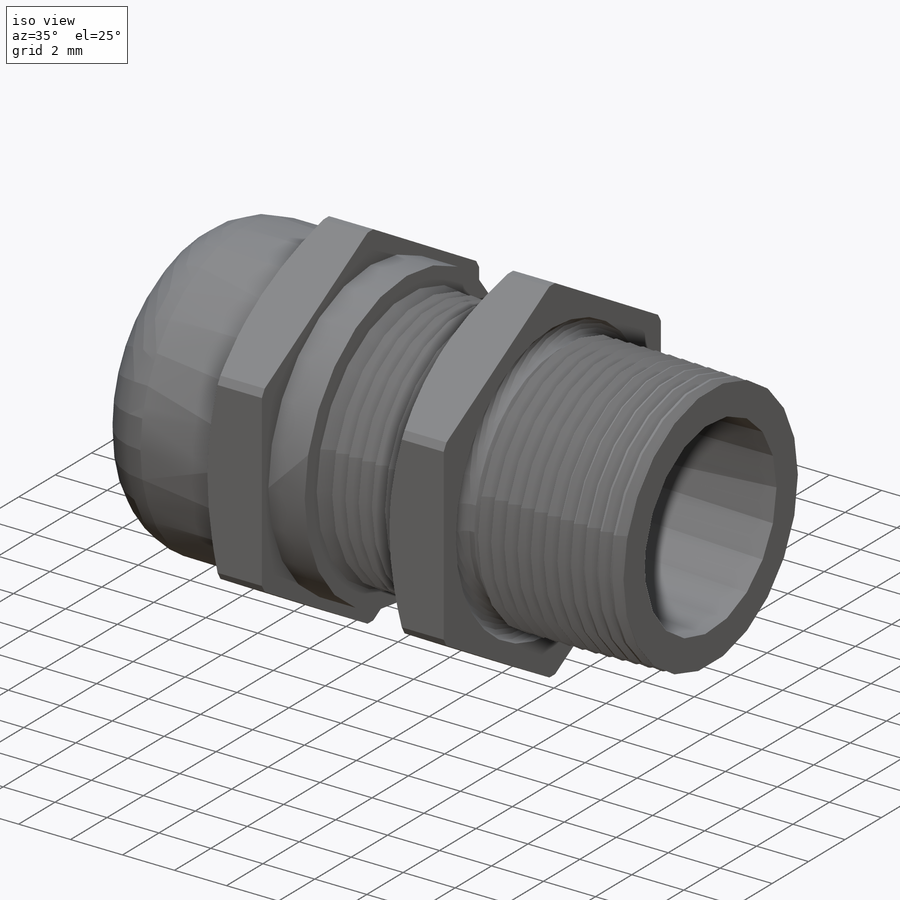
[diagram: iso view]
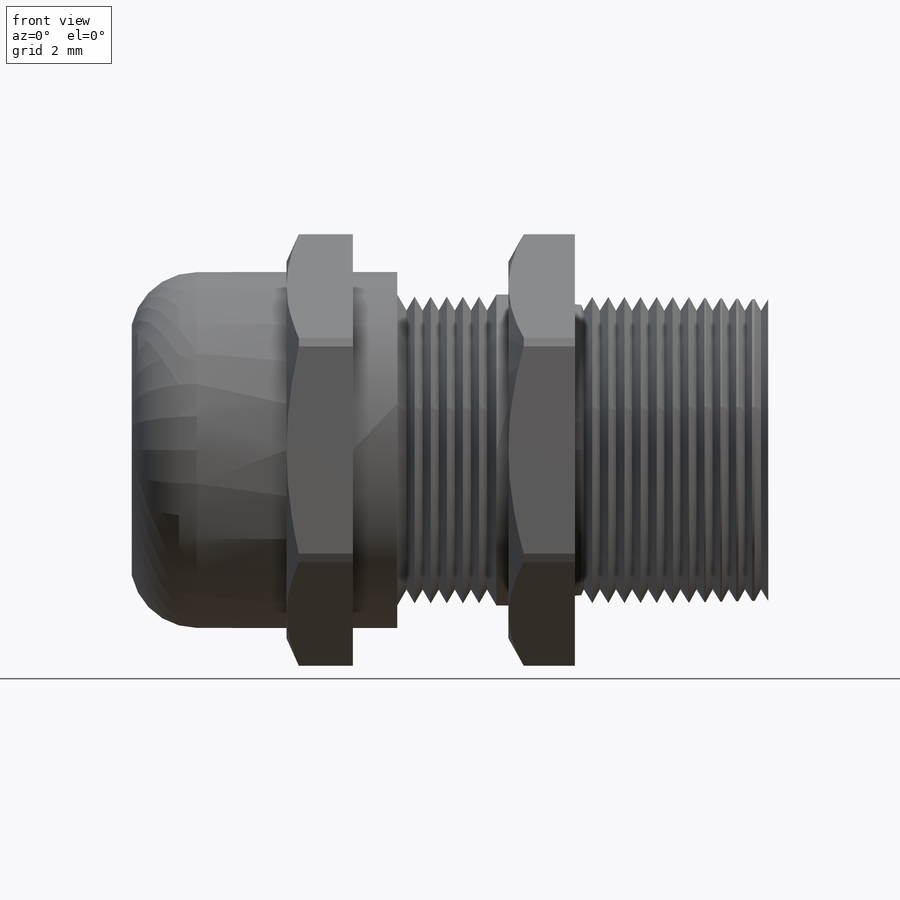
[diagram: front view]
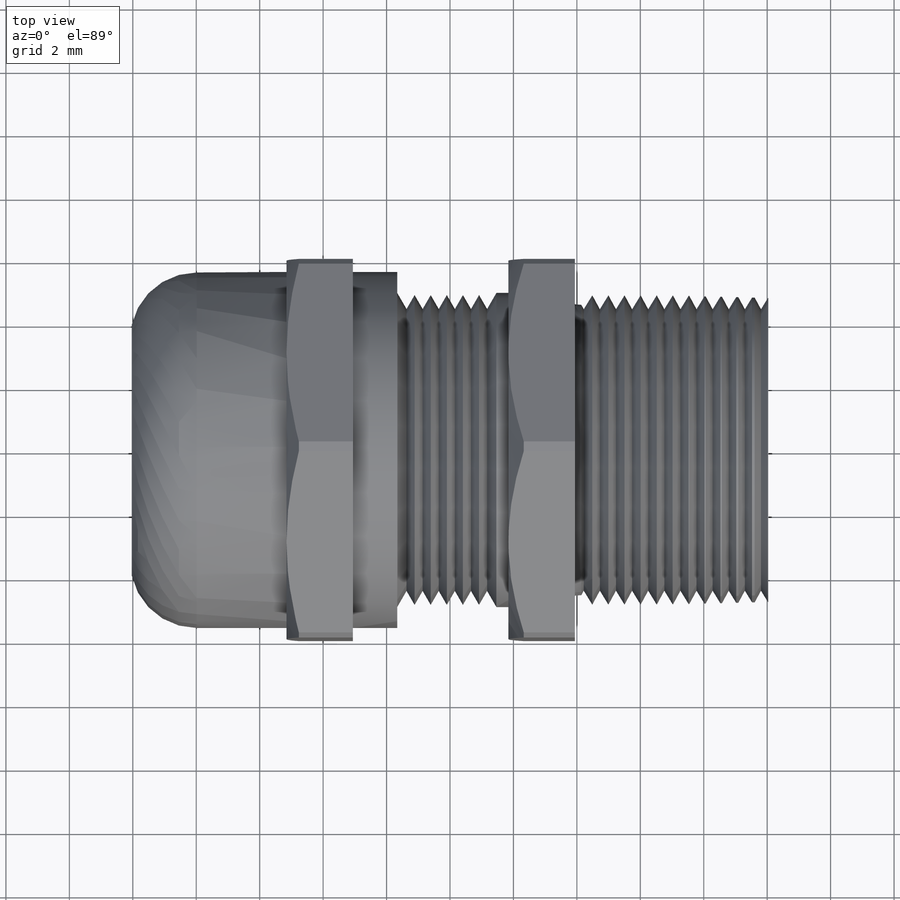
[diagram: top view]
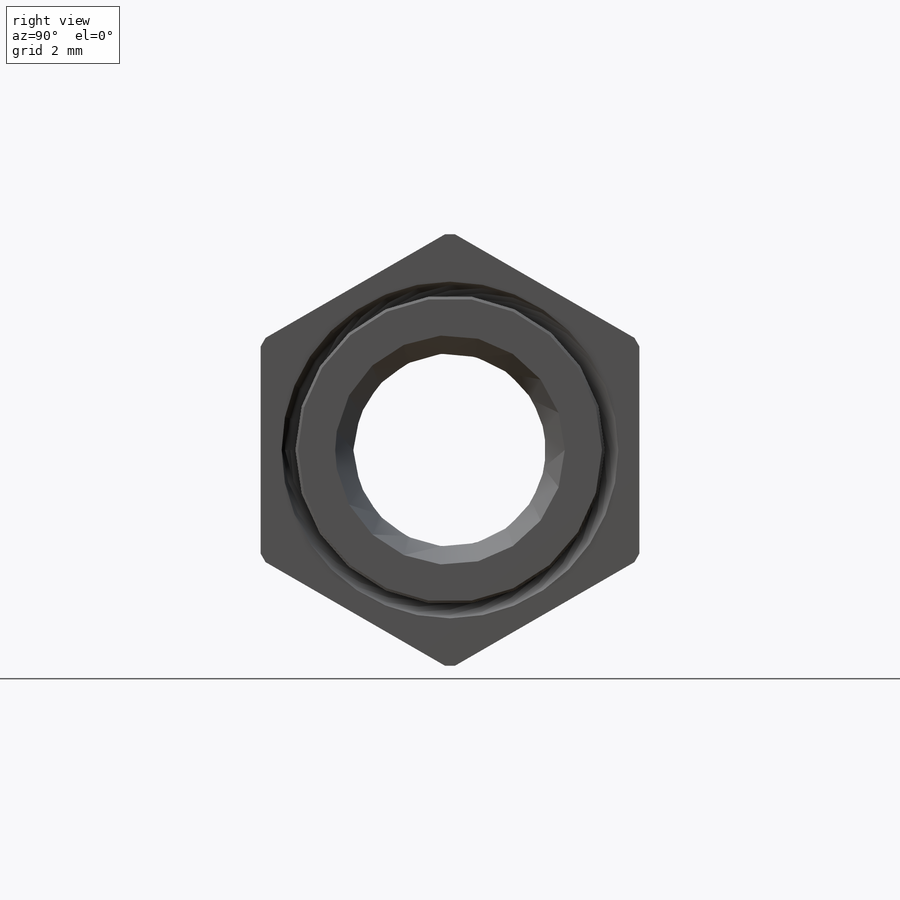
[diagram: right view]
SOLIDWORKS PART (.sldprt)
format: sldprt  version: not decoded by parser v0  size: 544,256 bytes
history: native  units: mm
features: sketch x15, revolve x4, cut_extrude x4, cut_revolve x3, pattern_linear x2, extrude x2, material x1, fillet x1, helix x1, plane x1, sweep x1, chamfer x1 (+14 scaffold rows collapsed; 1 parser-record rows omitted)
feature tree (51):
  scaffold x14  (default folders/planes/origin — collapsed)
  material  "Material <not specified>"
  sketch  "Sketch2"  dims[c1.CableDia=6.096mm c1.D2=~34.342246mm c2.D2=1.5deg c2.B=13.97mm c2.D=6.096mm c2.NutWidth=2.0955mm c2.NutWidth1=2.0955mm c2.A=12.446mm c2.NPT=9.906mm c2.F/F1=~13.60932mm c2.D5=~7.894301mm c2.D4=4.8768mm c3.D5=1.397mm c3.F/F1-=~11.227689mm c3.D7=~34.342246mm c3.D1=7.9248mm c3.D3=2.032mm c3.D6=17.7165mm c4.D6=~4.693299deg c4.D3=12.8397mm c5.D3=9.0deg c6.D3=12.8397mm c7.D3=2.5deg]
  revolve  "Revolve1"  Angle=360deg
  sketch  "Sketch12"  dims[D2=0.254mm D1=0.254mm]
  revolve  "Revolve3"  Angle=360deg
  sketch  "Sketch16"  dims[D2=0.254mm D1=0.254mm]
  revolve  "Revolve4"  Angle=360deg
  sketch  "Sketch6"  dims[c1.F/F1=13.97mm c2.F/F1=11.938mm]
  cut_extrude  "Cut-Extrude2"  [1 undecoded]
  sketch  "Sketch7"
  cut_extrude  "Cut-Extrude3"  Depth=2.54mm
  sketch  "Sketch8"
  cut_extrude  "Cut-Extrude4"  Depth=2.54mm
  sketch  "Sketch9"
  cut_extrude  "Cut-Extrude5"  [1 undecoded]
  sketch  "Sketch14"  dims[c1.D1=0.508mm c1.D2=1.016mm c2.D2=60.0deg c2.D3=~1.303399mm c3.D3=30.0deg c3.D4=~1.173176mm]
  cut_revolve  "Cut-Revolve1"  Angle=360deg
  pattern_linear  "LPattern1"  Count1=6 Count2=1 Spacing1=0.508mm Spacing2=50mm
  sketch  "Sketch15"  dims[c1.D1=0.508mm c1.D2=1.016mm c2.D2=60.0deg c2.D3=~1.277439mm c3.D3=30.0deg c4.D3=~0.57805mm c5.D3=60.0deg]
  cut_revolve  "Cut-Revolve2"  Angle=360deg
  pattern_linear  "LPattern2"  Count1=12 Count2=1 Spacing1=0.508mm Spacing2=50mm
  fillet  "Fillet1"  Radius=2.0955mm
  sketch  "Sketch3"  dims[c1.C=~65.28054mm c1.D1=~151.355923mm c2.D1=0.38deg c2.D2=~40.462802mm c2.D3=~1.659467mm c2.D4=~7.485126mm c2.D5=~15.133732mm c3.D5=~0.261706deg c4.D5=0.508mm c4.D2=0.254mm]
  parser-record x1  (decoder bookkeeping rows leaked as tree rows — omitted from the tree; the rows remain in map.json)
  revolve  "Revolve2"  Angle=360deg
  sketch  "Sketch4"
  helix  "Helix/Spiral1"  Pitch=44.16552mm revolution=70 taper=1deg
  plane  "Plane1"
  sketch  "Sketch5"  dims[D1=~0.75946mm]
  sweep  "Sweep1"
  sketch  "Sketch10"  dims[c1.D1=~8.755126mm c1.D2=5.08mm c2.D1=2.286mm c2.D2=~2.474595mm]
  extrude  "Extrude1"  Depth=0.75946mm
  chamfer  "Chamfer1"  Distance=1.397mm Angle=15deg
  sketch  "Sketch11"  dims[D1=~13.151037mm]
  extrude  "Extrude2"  Depth=0.635mm
  sketch  "Sketch17"  dims[D1=0.762mm D2=~0.139948mm]
  cut_revolve  "Cut-Revolve3"  Angle=360deg
decode coverage: 27 of 34 modeling features carry decoded parameters
note: ~ marks probable driven/reference dimensions
note: 2 parameter values undecoded
note: suppression state not decoded; provenance and decode notes live in map.json
